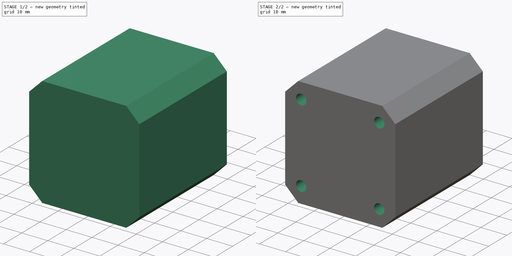
[diagram: build sequence overview — one tinted view per stage of 2, left to right]
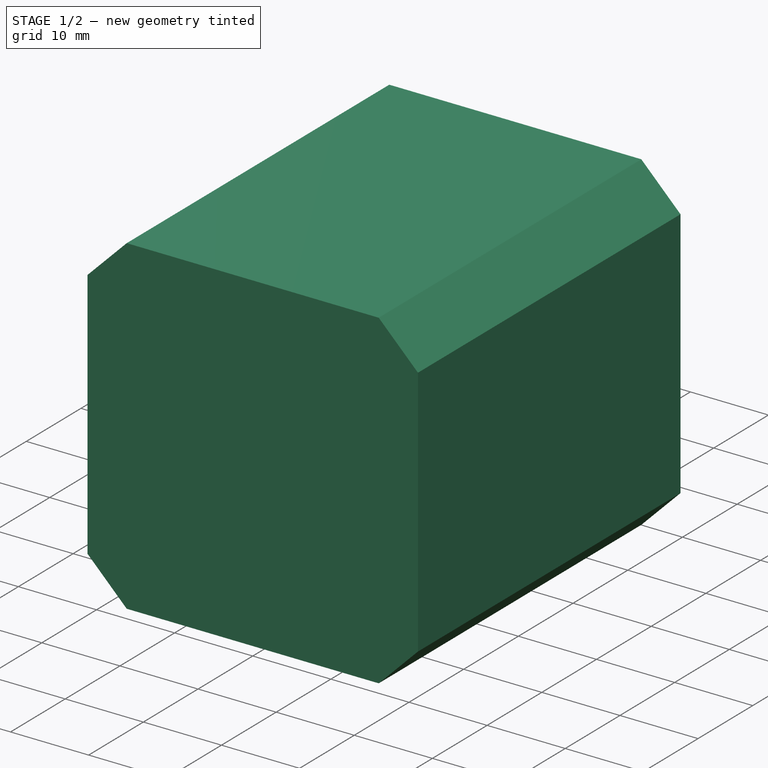
[diagram: stage 1 of 2 — iso view after this stage's code; geometry added in this stage tinted green]
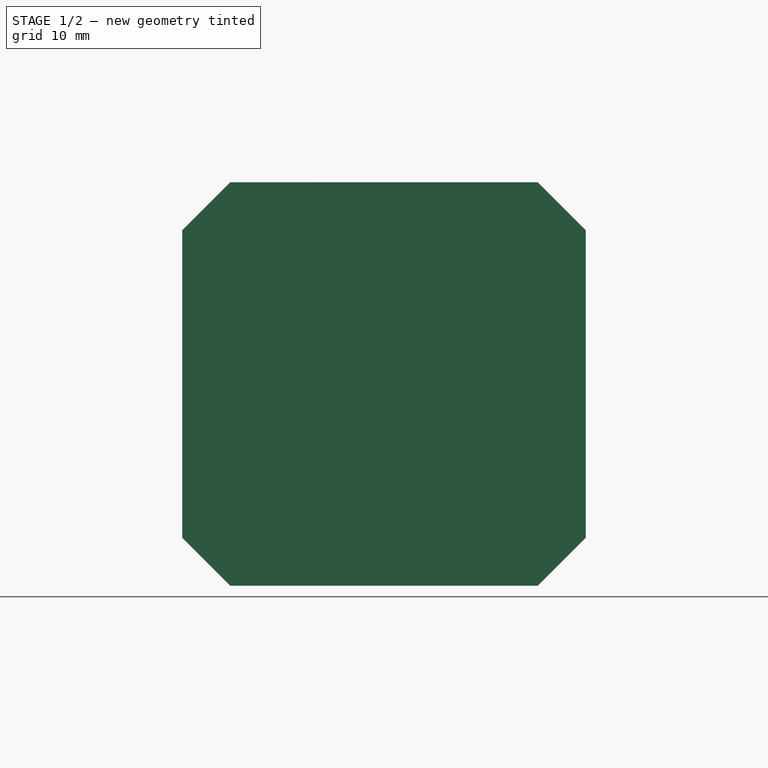
[diagram: stage 1 of 2 — front view after this stage's code; geometry added in this stage tinted green]
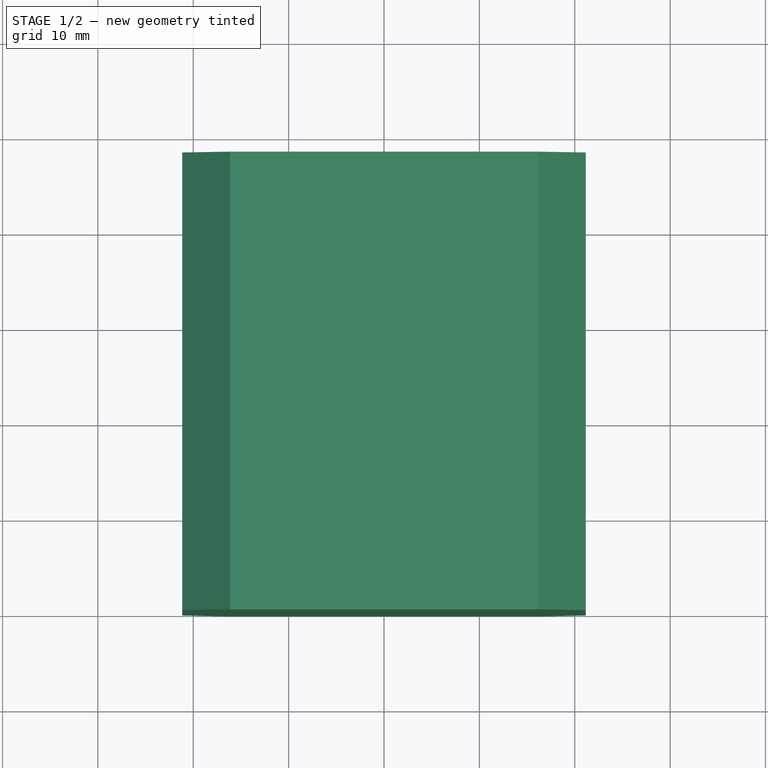
[diagram: stage 1 of 2 — top view after this stage's code; geometry added in this stage tinted green]
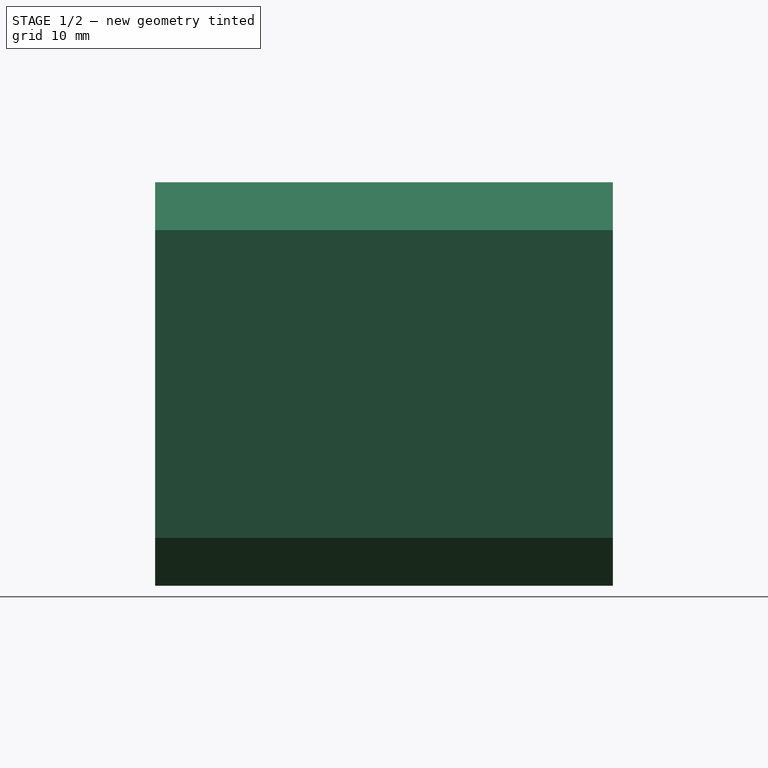
[diagram: stage 1 of 2 — right view after this stage's code; geometry added in this stage tinted green]
FCSTD DOCUMENT  (FreeCAD 0.15R4671 (Git))
Label: Moteur
License: All rights reserved
LicenseURL: http://en.wikipedia.org/wiki/All_rights_reserved
objects: Sketcher::SketchObject×3, PartDesign::Pad×1, PartDesign::Pocket×1
note: 7 computed .brp shape members not serialized (recipe doc carries the construction recipe); baked Part::Feature solids carry a one-line shape summary decoded from their .brp

FEATURE [Sketcher::SketchObject] Sketch
  Placement = pos=(0,0,0) rot=(1,0,0;1.5708rad)
  sketch-geometry (16):
    g0: LineSegment StartX=-21.15 StartY=16.1295 StartZ=0 EndX=-16.1295 EndY=21.15 EndZ=0
    g1: LineSegment StartX=-16.1295 StartY=21.15 StartZ=0 EndX=16.1295 EndY=21.15 EndZ=0
    g2: LineSegment StartX=16.1295 StartY=21.15 StartZ=0 EndX=21.15 EndY=16.1295 EndZ=0
    g3: LineSegment StartX=21.15 StartY=16.1295 StartZ=0 EndX=21.15 EndY=-16.1295 EndZ=0
    g4: LineSegment StartX=21.15 StartY=-16.1295 StartZ=0 EndX=16.1295 EndY=-21.15 EndZ=0
    g5: LineSegment StartX=16.1295 StartY=-21.15 StartZ=0 EndX=-16.1295 EndY=-21.15 EndZ=0
    g6: LineSegment StartX=-16.1295 StartY=-21.15 StartZ=0 EndX=-21.15 EndY=-16.1295 EndZ=0
    g7: LineSegment StartX=-21.15 StartY=-16.1295 StartZ=0 EndX=-21.15 EndY=16.1295 EndZ=0
    g8: LineSegment [constr] StartX=-16.1295 StartY=21.15 StartZ=0 EndX=0 EndY=0 EndZ=0
    g9: LineSegment [constr] StartX=0 StartY=0 StartZ=0 EndX=16.1295 EndY=21.15 EndZ=0
    g10: LineSegment [constr] StartX=-16.1295 StartY=-21.15 StartZ=0 EndX=0 EndY=0 EndZ=0
    g11: LineSegment [constr] StartX=0 StartY=0 StartZ=0 EndX=16.1295 EndY=-21.15 EndZ=0
    g12: LineSegment [constr] StartX=-21.15 StartY=16.1295 StartZ=0 EndX=0 EndY=0 EndZ=0
    g13: LineSegment [constr] StartX=-21.15 StartY=-16.1295 StartZ=0 EndX=0 EndY=0 EndZ=0
    g14: LineSegment [constr] StartX=21.15 StartY=16.1295 StartZ=0 EndX=0 EndY=0 EndZ=0
    g15: LineSegment [constr] StartX=21.15 StartY=-16.1295 StartZ=0 EndX=0 EndY=0 EndZ=0
  constraints (41):
    c: Coincident(g0,g1)
    c: Horizontal(g1)
    c: Coincident(g1,g2)
    c: Coincident(g2,g3)
    c: Vertical(g3)
    c: Coincident(g3,g4)
    c: Coincident(g4,g5)
    c: Horizontal(g5)
    c: Coincident(g5,g6)
    c: Coincident(g6,g7)
    c: Coincident(g7,g0)
    c: Vertical(g7)
    c: Coincident(g8,g0)
    c: Coincident(g8,g-1)
    c: Coincident(g9,g-1)
    c: Coincident(g9,g1)
    c: Equal(g8,g9)
    c: Coincident(g10,g5)
    c: Coincident(g10,g-1)
    c: Coincident(g11,g-1)
    c: Coincident(g11,g4)
    c: Equal(g6,g0)
    c: Equal(g0,g2)
    c: Equal(g2,g4)
    c: Equal(g7,g5)
    c: Equal(g5,g3)
    c: Equal(g3,g1)
    c: Coincident(g12,g0)
    c: Coincident(g12,g-1)
    c: Coincident(g13,g6)
    c: Coincident(g13,g-1)
    c: Coincident(g14,g2)
    c: Coincident(g14,g-1)
    c: Coincident(g15,g3)
    c: Coincident(g15,g-1)
    c: Equal(g12,g14)
    c: Equal(g14,g15)
    c: Equal(g15,g13)
    c: Equal(g8,g12)
    c: DistanceX(g2,g0) = -42.3
    c: Distance(g2) = 7.1
FEATURE [PartDesign::Pad] Pad
  Length = 48
  Length2 = 100
  Placement = pos=(0,0,0) rot=(1,0,0;1.5708rad)
  Reversed = true
  Sketch = -> Sketch
  Type = 0
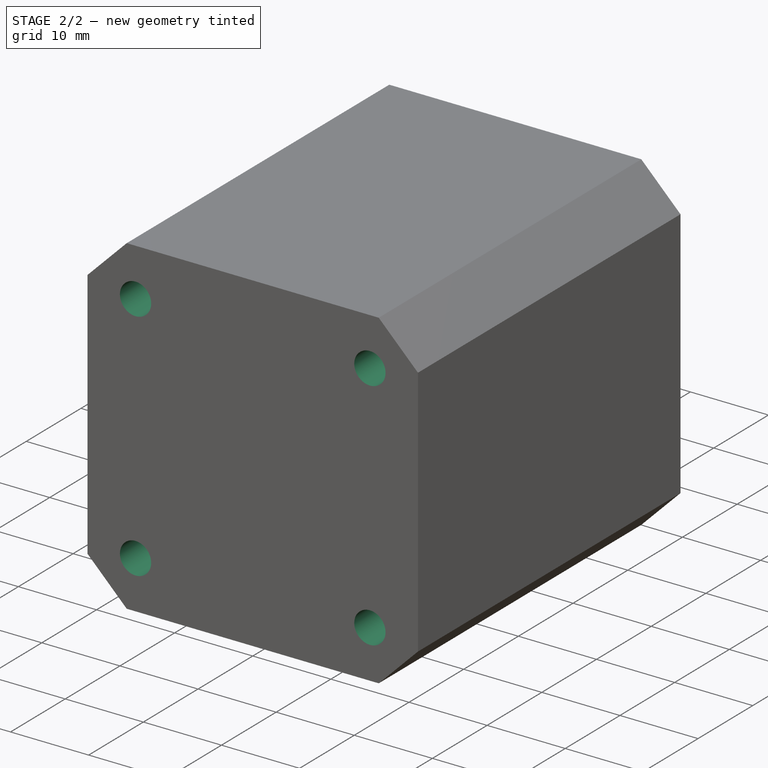
[diagram: stage 2 of 2 — iso view after this stage's code; geometry added in this stage tinted green]
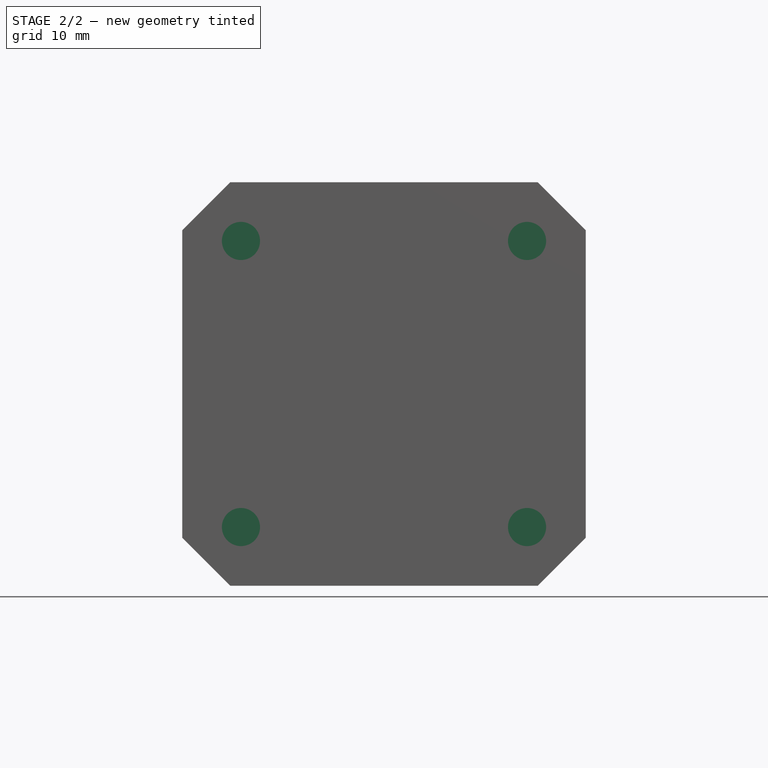
[diagram: stage 2 of 2 — front view after this stage's code; geometry added in this stage tinted green]
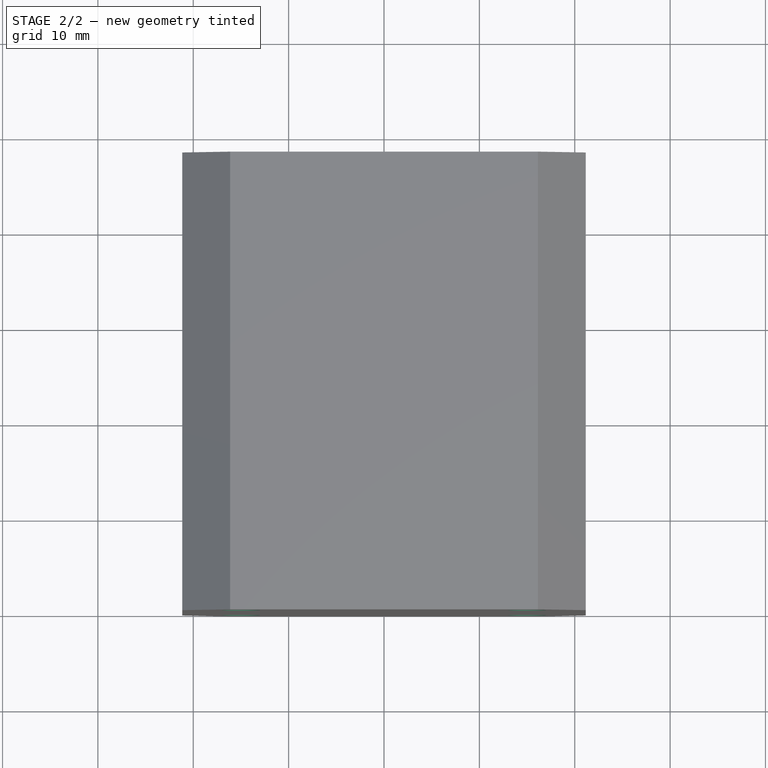
[diagram: stage 2 of 2 — top view after this stage's code; geometry added in this stage tinted green]
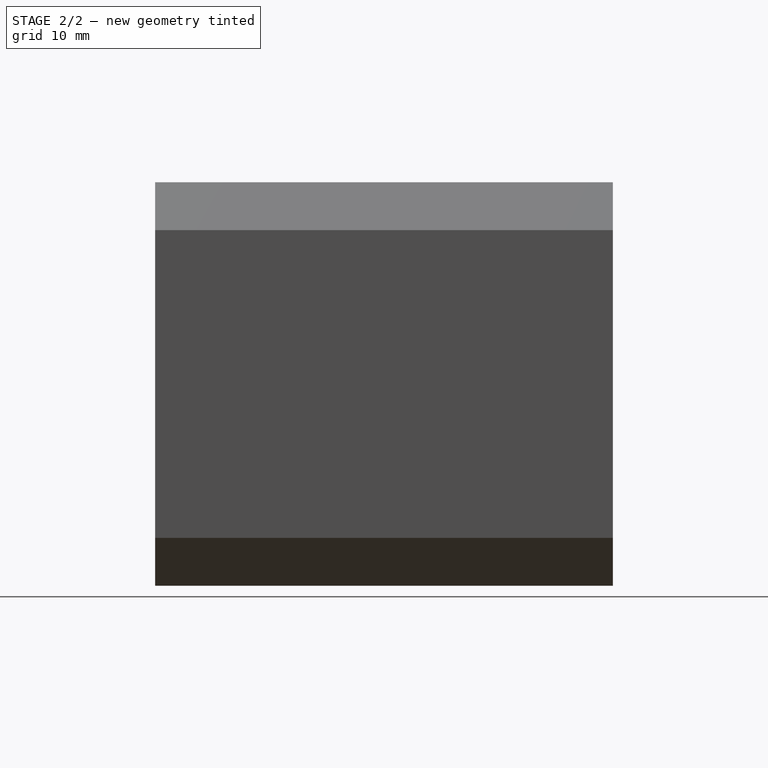
[diagram: stage 2 of 2 — right view after this stage's code; geometry added in this stage tinted green]
FEATURE [Sketcher::SketchObject] Sketch003
  Placement = pos=(0,0,0) rot=(0.57735,0.57735,0.57735;2.0944rad)
  sketch-geometry (7):
    g0: LineSegment StartX=1 StartY=11 StartZ=0 EndX=-2 EndY=11 EndZ=0
    g1: LineSegment StartX=-2 StartY=11 StartZ=0 EndX=-2 EndY=2 EndZ=0
    g2: LineSegment StartX=-2 StartY=2 StartZ=0 EndX=-23.2929 EndY=2 EndZ=0
    g3: LineSegment StartX=-24 StartY=1.29289 StartZ=0 EndX=-24 EndY=0 EndZ=0
    g4: LineSegment StartX=-24 StartY=0 StartZ=0 EndX=1 EndY=0 EndZ=0
    g5: LineSegment StartX=1 StartY=0 StartZ=0 EndX=1 EndY=11 EndZ=0
    g6: LineSegment StartX=-24 StartY=1.29289 StartZ=0 EndX=-23.2929 EndY=2 EndZ=0
  constraints (21):
    c: Horizontal(g0)
    c: Coincident(g0,g1)
    c: Vertical(g1)
    c: Coincident(g1,g2)
    c: Horizontal(g2)
    c: Vertical(g3)
    c: Distance(g0) = 3
    c: DistanceY(g3,g2) = 2
    c: DistanceX(g3,g0) = 22
    c: Coincident(g4,g3)
    c: Horizontal(g4)
    c: DistanceX(g-1,g0) = -2
    c: Coincident(g5,g4)
    c: Coincident(g5,g0)
    c: Vertical(g5)
    c: PointOnObject(g4,g-1)
    c: Coincident(g6,g3)
    c: Coincident(g6,g2)
    c: Angle(g4,g6) = 0.785398
    c: Distance(g6) = 1
    c: DistanceY(g5) = 11
FEATURE [Sketcher::SketchObject] Sketch004
  Placement = pos=(0,0,0) rot=(1,0,0;1.5708rad)
  Support = -> Pad [Face9]
  sketch-geometry (9):
    g0: Circle CenterX=-15 CenterY=15 CenterZ=0 NormalX=0 NormalY=0 NormalZ=1 Radius=2
    g1: Circle CenterX=15 CenterY=15 CenterZ=0 NormalX=0 NormalY=0 NormalZ=1 Radius=2
    g2: Circle CenterX=-15 CenterY=-15 CenterZ=0 NormalX=0 NormalY=0 NormalZ=1 Radius=2
    g3: Circle CenterX=15 CenterY=-15 CenterZ=0 NormalX=0 NormalY=0 NormalZ=1 Radius=2
    g4: LineSegment [constr] StartX=-15 StartY=15 StartZ=0 EndX=15 EndY=15 EndZ=0
    g5: LineSegment [constr] StartX=15 StartY=15 StartZ=0 EndX=15 EndY=-15 EndZ=0
    g6: LineSegment [constr] StartX=15 StartY=-15 StartZ=0 EndX=-15 EndY=-15 EndZ=0
    g7: LineSegment [constr] StartX=-15 StartY=-15 StartZ=0 EndX=-15 EndY=15 EndZ=0
    g8: Circle [constr] CenterX=0 CenterY=0 CenterZ=0 NormalX=0 NormalY=0 NormalZ=1 Radius=21.2132
  constraints (22):
    c: Coincident(g4,g5)
    c: Coincident(g5,g6)
    c: Coincident(g6,g7)
    c: Coincident(g7,g4)
    c: Horizontal(g4)
    c: Horizontal(g6)
    c: Vertical(g5)
    c: Vertical(g7)
    c: Coincident(g4,g0)
    c: Coincident(g5,g3)
    c: Coincident(g2,g6)
    c: Coincident(g1,g4)
    c: Equal(g0,g2)
    c: Equal(g2,g3)
    c: Equal(g3,g1)
    c: Radius(g0) = 2
    c: Equal(g4,g7)
    c: DistanceX(g4) = 30
    c: Coincident(g8,g-1)
    c: PointOnObject(g0,g8)
    c: PointOnObject(g3,g8)
    c: PointOnObject(g1,g8)
FEATURE [PartDesign::Pocket] Pocket
  Length = 5
  Placement = pos=(0,0,0) rot=(1,0,0;1.5708rad)
  Sketch = -> Sketch004
  Type = 0
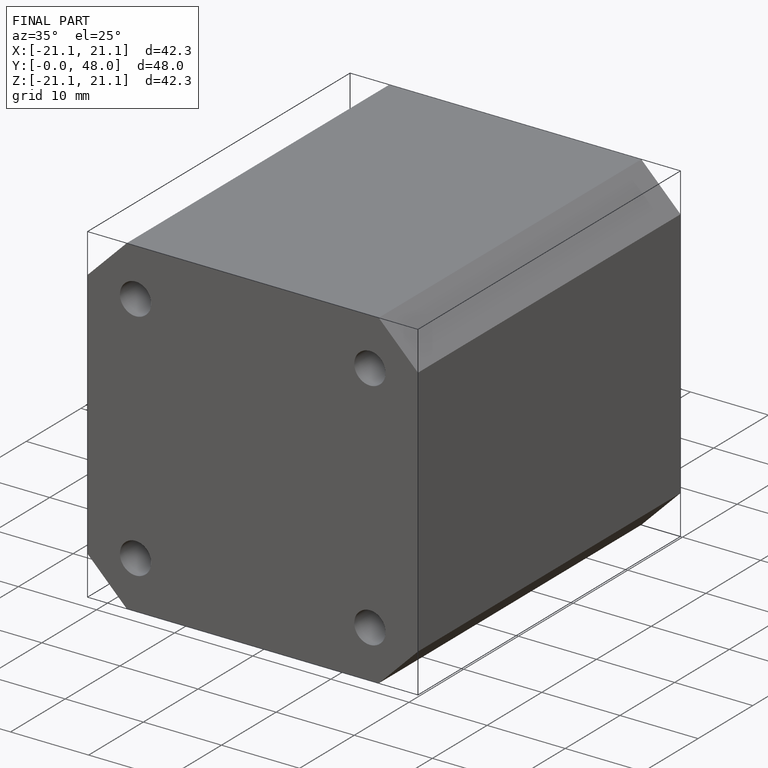
[diagram: finished part — iso view with bounding-box wireframe]
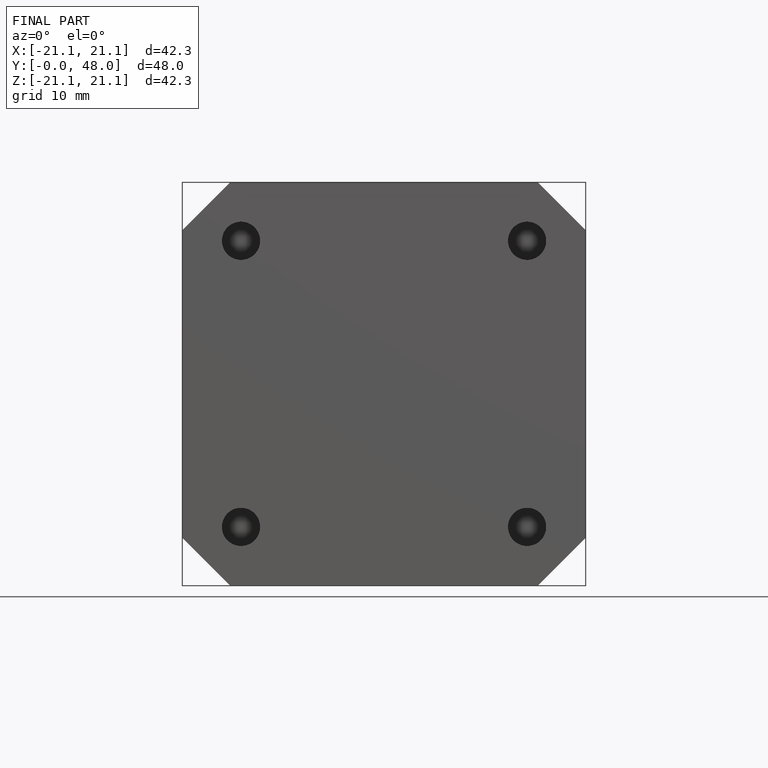
[diagram: finished part — front view with bounding-box wireframe]
